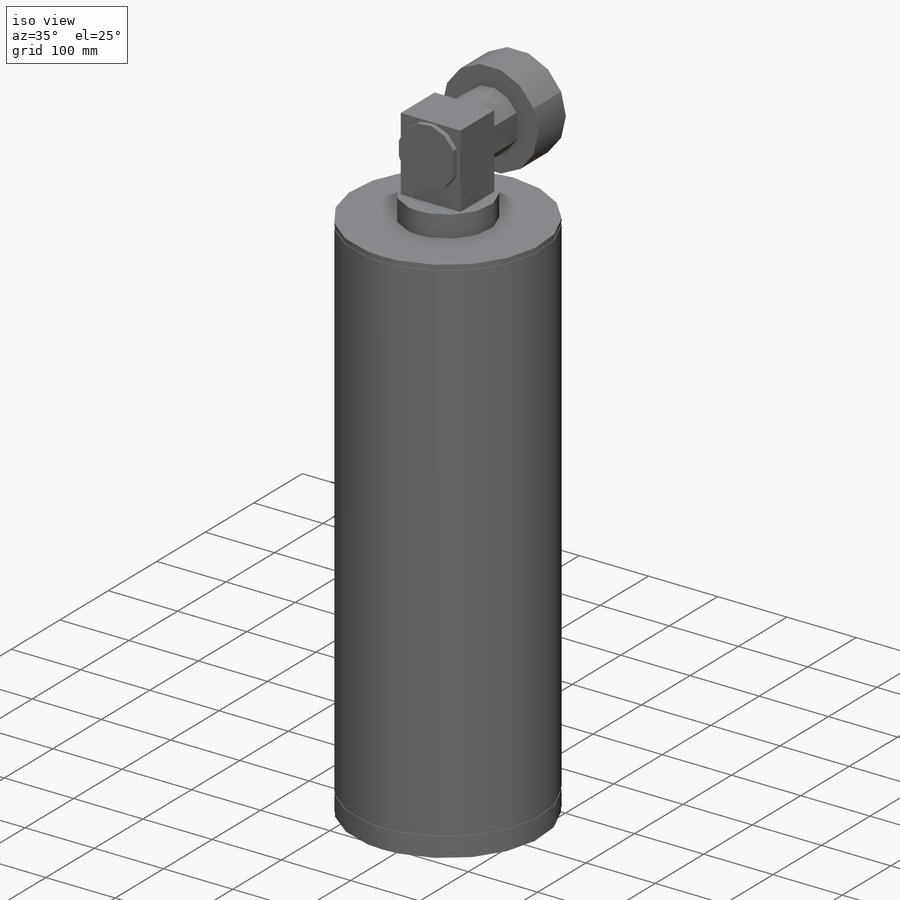
[diagram: iso view]
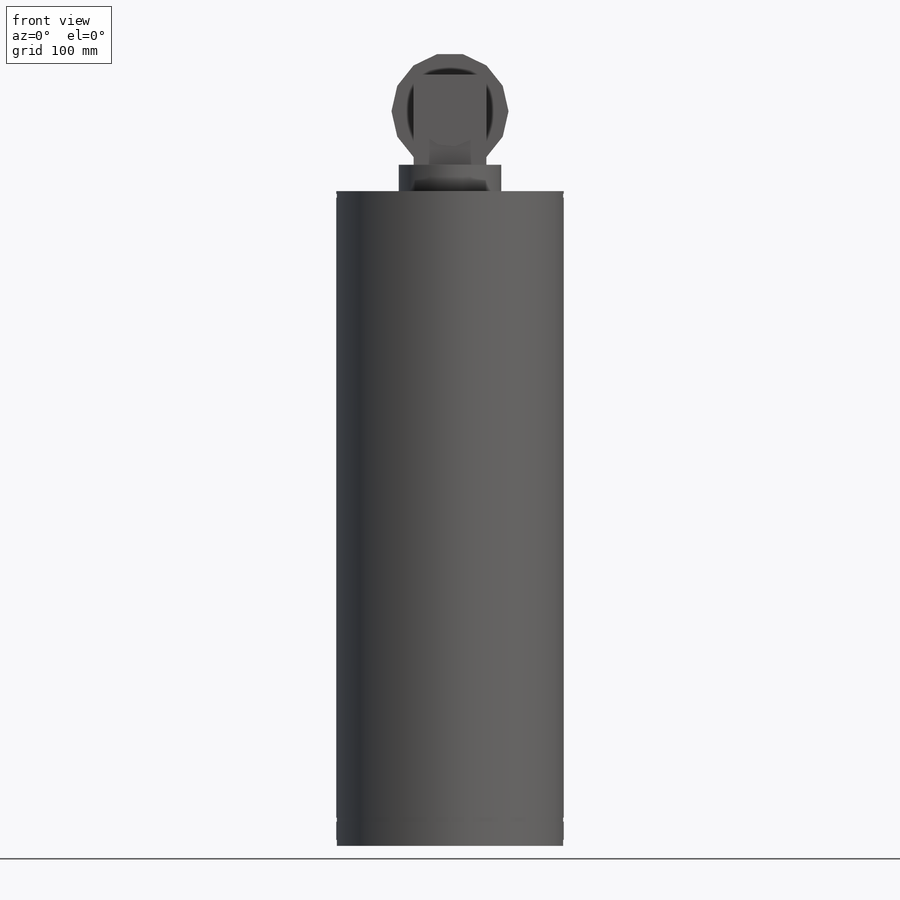
[diagram: front view]
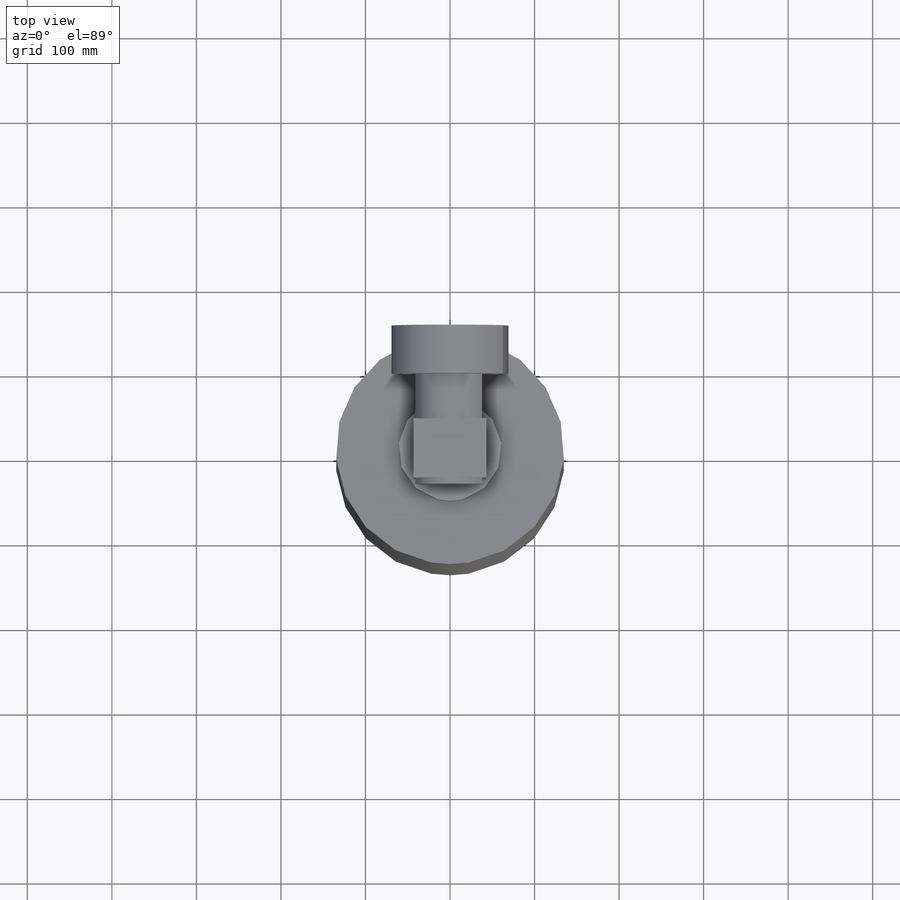
[diagram: top view]
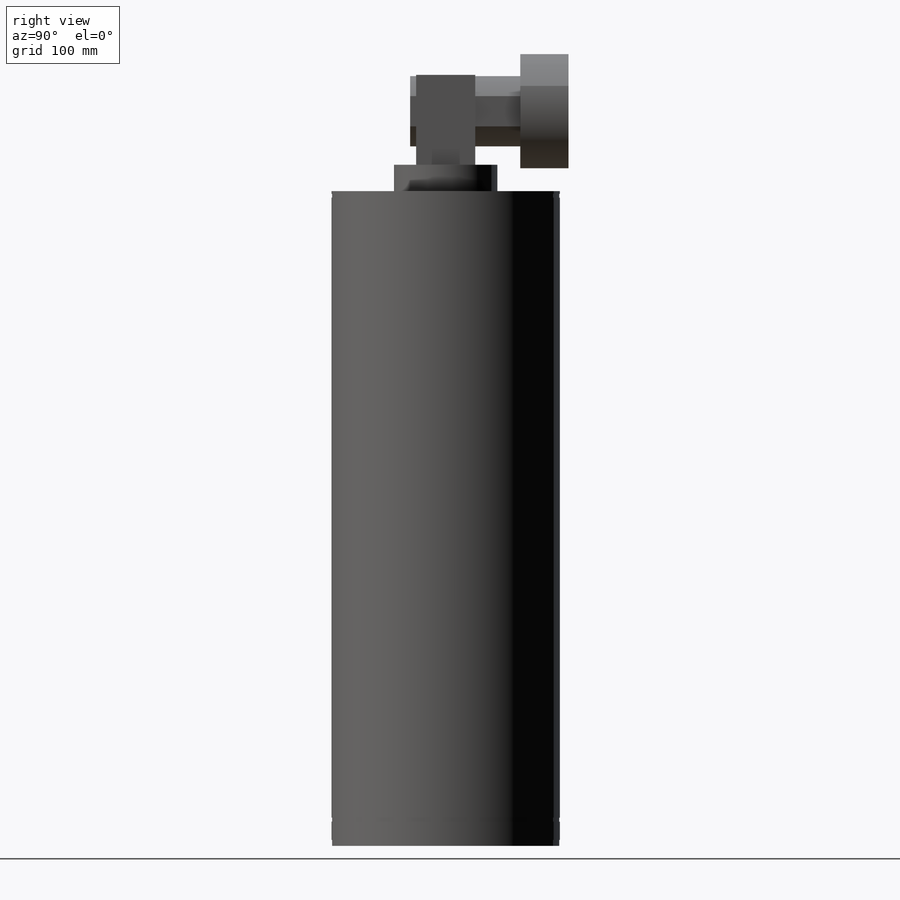
[diagram: right view]
SOLIDWORKS PART (.sldprt)
format: sldprt  version: not decoded by parser v0  size: 857,088 bytes
history: native  units: mm
features: sketch x13, extrude x10, material x1, cut_extrude x1 (+13 scaffold rows collapsed)
feature tree (38):
  scaffold x13  (default folders/planes/origin — collapsed)
  material  "Material <not specified>"
  sketch  "Sketch2"
  sketch  "Sketch5"
  sketch  "Sketch6"
  extrude  "Extrude1"  Depth=7.0358mm
  sketch  "Sketch7"  dims[D1=0.762mm]
  extrude  "Extrude2"  [1 undecoded]
  sketch  "Sketch8"  dims[D1=0.762mm]
  extrude  "Extrude3"  [1 undecoded]
  sketch  "Sketch9"
  extrude  "Extrude4"  Depth=733.4758mm
  sketch  "Sketch10"  dims[D1=0.762mm]
  extrude  "Extrude5"  Depth=4.445mm
  sketch  "Sketch11"  dims[D1=0.762mm]
  extrude  "Extrude6"  Depth=3.26898mm
  sketch  "Sketch12"
  extrude  "Extrude7"  Depth=31.20898mm
  sketch  "Sketch13"
  extrude  "Extrude8"  [1 undecoded]
  sketch  "Sketch14"
  extrude  "Extrude9"  Depth=7.07898mm
  sketch  "Sketch15"
  extrude  "Extrude10"  Depth=57.15mm
  sketch  "Sketch16"
  cut_extrude  "Cut-Extrude1"  Depth=758.28398mm
decode coverage: 12 of 24 modeling features carry decoded parameters
note: 3 parameter values undecoded
summary: no parameter record found for 3 features
note: suppression state not decoded; provenance and decode notes live in map.json
